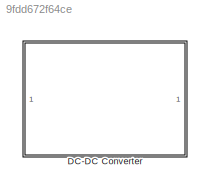
MODEL slx_9fdd672f64ce
KIND library
CONFIG AbsTol = auto
CONFIG EnableMultiTasking = off
CONFIG FixedStep = auto
CONFIG MaxStep = auto
CONFIG MinStep = auto
CONFIG RelTol = 1e-3
CONFIG SampleTimeConstraint = Unconstrained
CONFIG Solver = VariableStepAuto
CONFIG SolverName = VariableStepAuto
CONFIG StartTime = 0.0
CONFIG StopTime = 10.0
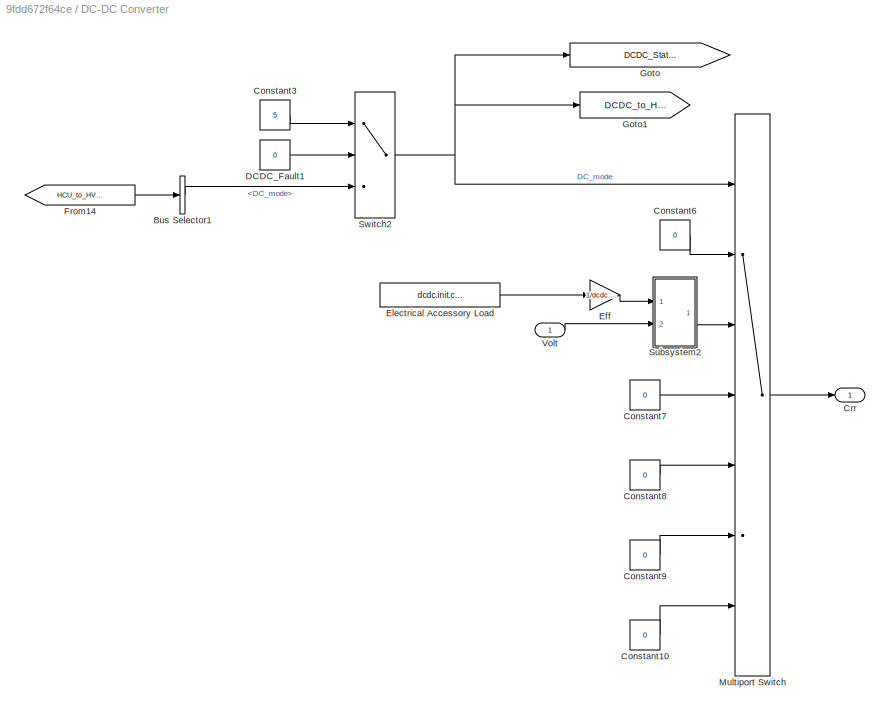
BLOCK [SubSystem] DC-DC Converter
  Ports = [1, 1]
  RequestExecContextInheritance = off
  Variant = off
BLOCK [BusSelector] DC-DC Converter/Bus Selector1
  OutputAsBus = off
  OutputSignals = DCDC.DC_mode
  Ports = [1, 1]
BLOCK [Constant] DC-DC Converter/Constant10
  Value = 0
BLOCK [Constant] DC-DC Converter/Constant3
  Value = 5
BLOCK [Constant] DC-DC Converter/Constant6
  Value = 0
BLOCK [Constant] DC-DC Converter/Constant7
  Value = 0
BLOCK [Constant] DC-DC Converter/Constant8
  Value = 0
BLOCK [Constant] DC-DC Converter/Constant9
  Value = 0
BLOCK [Outport] DC-DC Converter/Crr
  IconDisplay = Port number
BLOCK [Constant] DC-DC Converter/DCDC_Fault1
  Value = 0
BLOCK [Gain] DC-DC Converter/Eff
  Gain = 1/dcdc.init.eff
  OutDataTypeStr = Inherit: Inherit via internal rule
  ParamDataTypeStr = Inherit: Inherit via internal rule
  SaturateOnIntegerOverflow = off
BLOCK [Constant] DC-DC Converter/Electrical Accessory Load
  Value = dcdc.init.constant_pwr
BLOCK [From] DC-DC Converter/From14
  GotoTag = HCU_to_HV_CAN
  TagVisibility = global
BLOCK [Goto] DC-DC Converter/Goto
  GotoTag = DCDC_Status
  TagVisibility = global
BLOCK [Goto] DC-DC Converter/Goto1
  GotoTag = DCDC_to_HCU
  TagVisibility = global
BLOCK [MultiPortSwitch] DC-DC Converter/Multiport Switch
  DataPortOrder = Zero-based contiguous
  InputSameDT = off
  Inputs = 6
  Ports = [7, 1]
  SaturateOnIntegerOverflow = off
  zeroidx = on
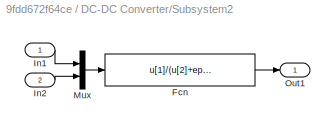
BLOCK [SubSystem] DC-DC Converter/Subsystem2
  Ports = [2, 1]
  RequestExecContextInheritance = off
  Variant = off
BLOCK [Fcn] DC-DC Converter/Subsystem2/Fcn
  Expr = u[1]/(u[2]+eps)*(u[2]!=0)
BLOCK [Inport] DC-DC Converter/Subsystem2/In1
  IconDisplay = Port number
BLOCK [Inport] DC-DC Converter/Subsystem2/In2
  IconDisplay = Port number
  Port = 2
BLOCK [Mux] DC-DC Converter/Subsystem2/Mux
  DisplayOption = bar
  Inputs = 2
  Ports = [2, 1]
BLOCK [Outport] DC-DC Converter/Subsystem2/Out1
  IconDisplay = Port number
BLOCK [Switch] DC-DC Converter/Switch2
  Criteria = u2 > Threshold
  InputSameDT = off
  SaturateOnIntegerOverflow = off
BLOCK [Inport] DC-DC Converter/Volt
  IconDisplay = Port number
LINE DC-DC Converter/Bus Selector1:1 -> DC-DC Converter/Switch2:3
LINE DC-DC Converter/Constant10:1 -> DC-DC Converter/Multiport Switch:7
LINE DC-DC Converter/Constant3:1 -> DC-DC Converter/Switch2:1
LINE DC-DC Converter/Constant6:1 -> DC-DC Converter/Multiport Switch:2
LINE DC-DC Converter/Constant7:1 -> DC-DC Converter/Multiport Switch:4
LINE DC-DC Converter/Constant8:1 -> DC-DC Converter/Multiport Switch:5
LINE DC-DC Converter/Constant9:1 -> DC-DC Converter/Multiport Switch:6
LINE DC-DC Converter/DCDC_Fault1:1 -> DC-DC Converter/Switch2:2
LINE DC-DC Converter/Eff:1 -> DC-DC Converter/Subsystem2:1
LINE DC-DC Converter/Electrical Accessory Load:1 -> DC-DC Converter/Eff:1
LINE DC-DC Converter/From14:1 -> DC-DC Converter/Bus Selector1:1
LINE DC-DC Converter/Multiport Switch:1 -> DC-DC Converter/Crr:1
LINE DC-DC Converter/Subsystem2/Fcn:1 -> DC-DC Converter/Subsystem2/Out1:1
LINE DC-DC Converter/Subsystem2/In1:1 -> DC-DC Converter/Subsystem2/Mux:1
LINE DC-DC Converter/Subsystem2/In2:1 -> DC-DC Converter/Subsystem2/Mux:2
LINE DC-DC Converter/Subsystem2/Mux:1 -> DC-DC Converter/Subsystem2/Fcn:1
LINE DC-DC Converter/Subsystem2:1 -> DC-DC Converter/Multiport Switch:3
NET DC-DC Converter/Switch2:1 -> DC-DC Converter/Goto1:1, DC-DC Converter/Goto:1, DC-DC Converter/Multiport Switch:1
LINE DC-DC Converter/Volt:1 -> DC-DC Converter/Subsystem2:2
note: NET lines group one-source signal fan-out (src -> all destinations, sorted); 1:1 wires keep LINE
